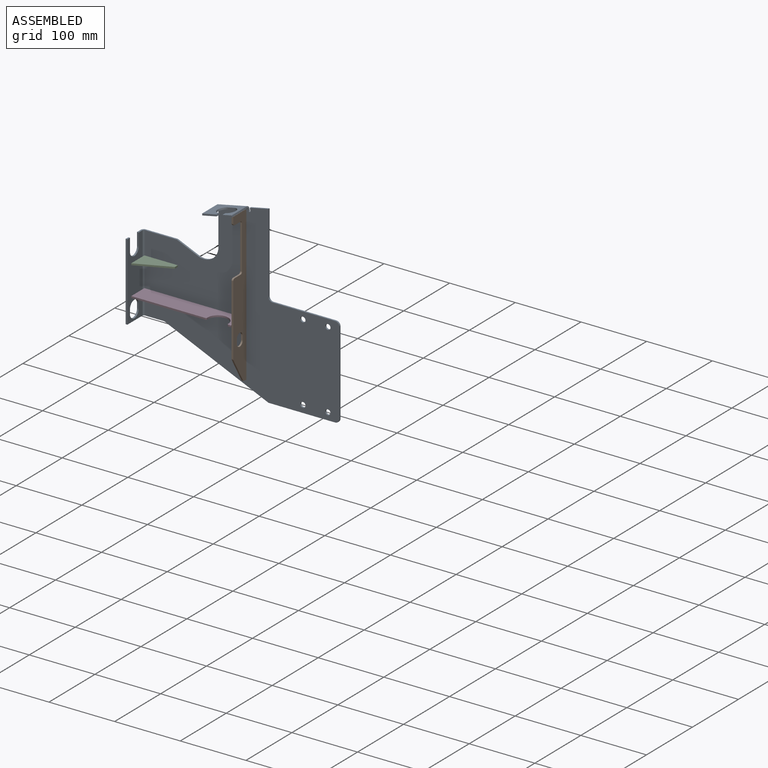
[diagram: assembled view]
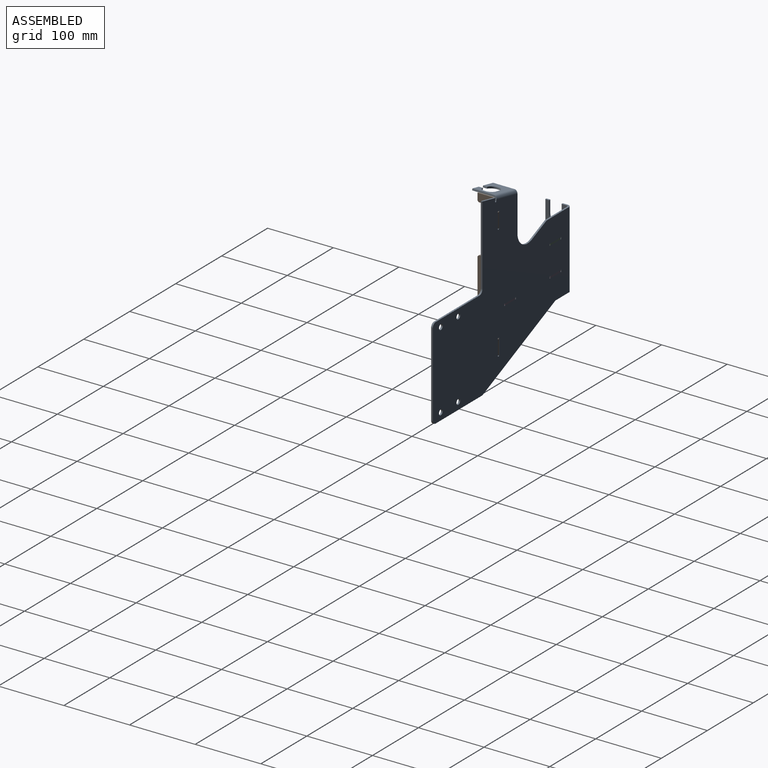
[diagram: assembled view, second angle]
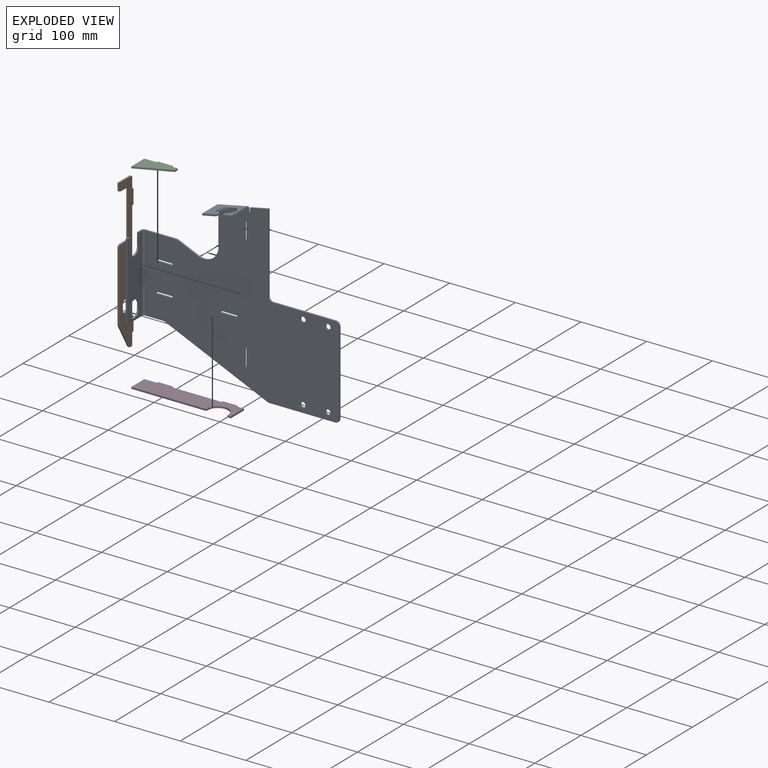
[diagram: exploded view]
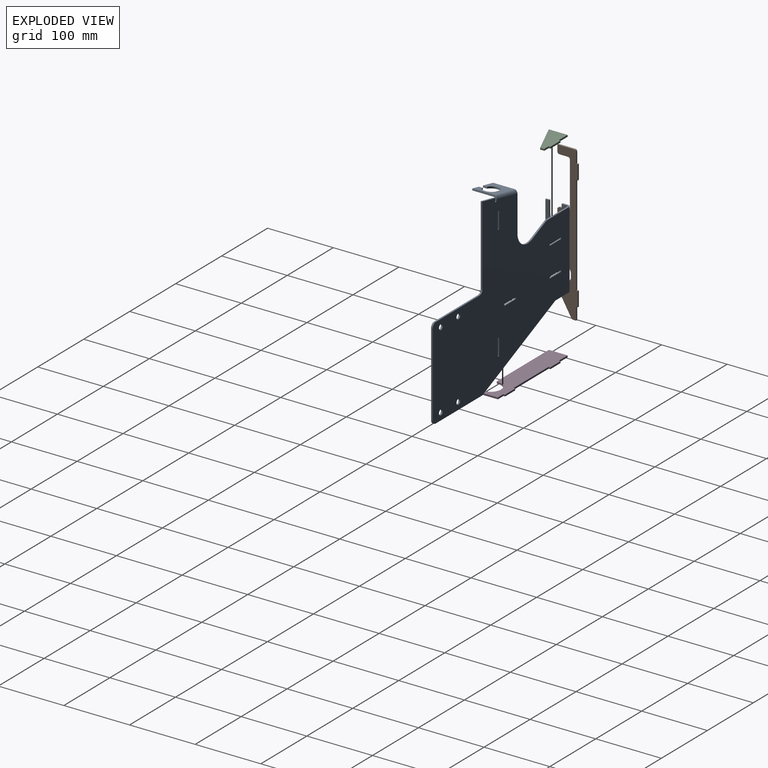
[diagram: exploded view, second angle]
ASSEMBLY  parts=4 mates=3
PART A: 75 faces, bbox 301x37.5x266.7 mm
  f0: plane 95.25x2.54mm, normal (0,0,1), area 241.9mm2, adj f1,f37,f38,f39
  f1: cylinder r=6.35mm len=6.35mm, axis (0,-1,0), area 25.3mm2, adj f0,f2,f38,f39
  f2: plane 127x2.54mm, normal (1,0,0), area 322.6mm2, adj f1,f3,f38,f39
  f3: cylinder r=6.35mm len=6.35mm, axis (0,-1,0), area 25.3mm2, adj f2,f4,f38,f39
  f4: plane 101.6x2.54mm, normal (0,0,-1), area 258.1mm2, adj f3,f5,f38,f39
  f5: plane 158.75x69.85mm, normal (-0.4,0,-0.92), area 440.5mm2, adj f4,f6,f38,f39
  f6: plane 29.46x2.54mm, normal (0,0,-1), area 74.8mm2, adj f5,f38,f39,f71
  f7: plane 48.51x2.54mm, normal (0,0,1), area 123.2mm2, adj f8,f38,f39,f72
  f8: plane 32.45x14.05mm, normal (0.4,0,0.92), area 89.8mm2, adj f7,f9,f38,f39
  f9: cylinder r=22.23mm len=31.05mm, axis (0,-1,0), area 111.7mm2, adj f8,f10,f38,f39
  f10: plane 54.82x2.54mm, normal (-1,0,0), area 139.2mm2, adj f9,f38,f39,f55
  f11: plane 28.44x5.93mm, normal (-0.2,0,0.98), area 73.8mm2, adj f12,f38,f39,f41
  f12: plane 120.65x2.54mm, normal (1,0,0), area 306.5mm2, adj f11,f37,f38,f39
  f13: plane 25.4x2.54mm, normal (-1,0,0), area 64.5mm2, adj f14,f32,f38,f39
  f14: plane 2.54x2.54mm, normal (0,0,-1), area 6.5mm2, adj f13,f15,f38,f39
  f15: plane 25.4x2.54mm, normal (1,0,0), area 64.5mm2, adj f14,f32,f38,f39
  f16: plane 25.4x2.54mm, normal (1,0,0), area 64.5mm2, adj f17,f31,f38,f39
  f17: plane 2.54x2.54mm, normal (0,0,1), area 6.5mm2, adj f16,f18,f38,f39
  f18: plane 25.4x2.54mm, normal (-1,0,0), area 64.5mm2, adj f17,f31,f38,f39
  f19: plane 2.54x2.54mm, normal (-1,0,0), area 6.5mm2, adj f20,f30,f38,f39
  f20: plane 25.4x2.54mm, normal (0,0,-1), area 64.5mm2, adj f19,f21,f38,f39
  f21: plane 2.54x2.54mm, normal (1,0,0), area 6.5mm2, adj f20,f30,f38,f39
  f22: plane 25.4x2.54mm, normal (0,0,1), area 64.5mm2, adj f23,f29,f38,f39
  f23: plane 2.54x2.54mm, normal (-1,0,0), area 6.5mm2, adj f22,f24,f38,f39
  f24: plane 25.4x2.54mm, normal (0,0,-1), area 64.5mm2, adj f23,f29,f38,f39
  f25: plane 25.4x2.54mm, normal (0,0,1), area 64.5mm2, adj f26,f28,f38,f39
  f26: plane 2.54x2.54mm, normal (-1,0,0), area 6.5mm2, adj f25,f27,f38,f39
  f27: plane 25.4x2.54mm, normal (0,0,-1), area 64.5mm2, adj f26,f28,f38,f39
  f28: plane 2.54x2.54mm, normal (1,0,0), area 6.5mm2, adj f25,f27,f38,f39
  f29: plane 2.54x2.54mm, normal (1,0,0), area 6.5mm2, adj f22,f24,f38,f39
  f30: plane 25.4x2.54mm, normal (0,0,1), area 64.5mm2, adj f19,f21,f38,f39
  f31: plane 2.54x2.54mm, normal (0,0,-1), area 6.5mm2, adj f16,f18,f38,f39
  f32: plane 2.54x2.54mm, normal (0,0,1), area 6.5mm2, adj f13,f15,f38,f39
  f33: cylinder r=3.98mm len=7.95mm, axis (0,-1,0), area 63.4mm2, adj f38,f39
  f34: cylinder r=3.98mm len=7.95mm, axis (0,-1,0), area 63.4mm2, adj f38,f39
  f35: cylinder r=3.98mm len=7.95mm, axis (0,-1,0), area 63.4mm2, adj f38,f39
  f36: cylinder r=3.98mm len=7.95mm, axis (0,-1,0), area 63.4mm2, adj f38,f39
  f37: cylinder r=6.35mm len=6.35mm, axis (0,-1,0), area 25.3mm2, adj f0,f12,f38,f39
  f38: plane 296.16x266.7mm, normal (0,1,0), area 46919mm2, adj f0,f1,f2,f3,f4,f5,f6,f7
  f39: plane 296.16x266.7mm, normal (0,-1,0), area 46919mm2, adj f0,f1,f2,f3,f4,f5,f6,f7
  f40: plane 2.54x2.04mm, normal (0.98,0,0.2), area 5.3mm2, adj f38,f39,f42,f54
  f41: plane 4.27x2.54mm, normal (-0.98,0,-0.2), area 11.1mm2, adj f11,f38,f39,f42
  f42: cylinder r=1.35mm len=2.67mm, axis (0,-1,0), area 10.8mm2, adj f38,f39,f40,f41
  f43: plane 32.64x2.49mm, normal (-0.98,0,-0.2), area 82.9mm2, adj f44,f52,f53,f55
  f44: plane 22.28x7.02mm, normal (0,-1,0), area 56.5mm2, adj f43,f45,f52,f53
  f45: plane 6.35x2.49mm, normal (0.98,0,0.2), area 16.1mm2, adj f44,f46,f52,f53
  f46: cylinder r=9.53mm len=19.05mm, axis (-0.2,0,0.98), area 76mm2, adj f45,f47,f52,f53
  f47: plane 9.84x4.43mm, normal (0,-1,0), area 24.2mm2, adj f46,f48,f52,f53
  f48: cylinder r=9.53mm len=19.05mm, axis (-0.2,0,0.98), area 76mm2, adj f47,f49,f52,f53
  f49: plane 6.35x2.49mm, normal (-0.98,0,-0.2), area 16.1mm2, adj f48,f50,f52,f53
  f50: plane 14.55x5.41mm, normal (0,-1,0), area 36.4mm2, adj f49,f51,f52,f53
  f51: plane 32.64x2.49mm, normal (0.98,0,0.2), area 82.9mm2, adj f50,f52,f53,f54
  f52: plane 45.12x32.64mm, normal (-0.2,0,0.98), area 977.2mm2, adj f43,f44,f45,f46,f47,f48,f49,f50
  f53: plane 45.12x32.64mm, normal (0.2,0,-0.98), area 977.2mm2, adj f43,f44,f45,f46,f47,f48,f49,f50
  f54: plane 4.83x4.72mm, normal (0.98,0,0.2), area 14.2mm2, adj f40,f51,f56,f57
  f55: bspline ~4.83x4.83mm, area 14.3mm2, adj f10,f43,f56,f57
  f56: cylinder r=4.83mm len=46.57mm, axis (0.98,0,0.2), area 351.2mm2, adj f38,f52,f54,f55
  f57: cylinder r=2.29mm len=46.05mm, axis (0.98,0,0.2), area 166.3mm2, adj f39,f53,f54,f55
  f58: cylinder r=9.53mm len=19.05mm, axis (1,0,0), area 76mm2, adj f59,f68,f69,f70
  f59: plane 19.05x2.54mm, normal (0,-1,0), area 48.4mm2, adj f58,f60,f69,f70
  f60: plane 7.87x2.54mm, normal (0,0,1), area 20mm2, adj f59,f69,f70,f72
  f61: plane 32.64x2.54mm, normal (0,0,-1), area 82.9mm2, adj f62,f69,f70,f71
  f62: plane 117.48x2.54mm, normal (0,-1,0), area 298.4mm2, adj f61,f63,f69,f70
  f63: plane 5.72x2.54mm, normal (0,0,1), area 14.5mm2, adj f62,f68,f69,f70
  f64: plane 6.35x2.54mm, normal (0,1,0), area 16.1mm2, adj f65,f67,f69,f70
  f65: cylinder r=9.53mm len=19.05mm, axis (1,0,0), area 76mm2, adj f64,f66,f69,f70
  f66: plane 6.35x2.54mm, normal (0,-1,0), area 16.1mm2, adj f65,f67,f69,f70
  f67: cylinder r=9.53mm len=19.05mm, axis (1,0,0), area 76mm2, adj f64,f66,f69,f70
  f68: plane 19.05x2.54mm, normal (0,1,0), area 48.4mm2, adj f58,f63,f69,f70
  f69: plane 117.48x32.64mm, normal (-1,0,0), area 2922.9mm2, adj f58,f59,f60,f61,f62,f63,f64,f65
  f70: plane 117.48x32.64mm, normal (1,0,0), area 2922.9mm2, adj f58,f59,f60,f61,f62,f63,f64,f65
  f71: plane 4.83x4.83mm, normal (0,0,-1), area 14.2mm2, adj f6,f61,f73,f74
  f72: plane 4.83x4.83mm, normal (0,0,1), area 14.2mm2, adj f7,f60,f73,f74
  f73: cylinder r=4.83mm len=117.48mm, axis (0,0,-1), area 890.5mm2, adj f38,f69,f71,f72
  f74: cylinder r=2.29mm len=117.48mm, axis (0,0,-1), area 421.8mm2, adj f39,f70,f71,f72
PART B: 30 faces, bbox 2.5x31.1x235 mm
  f0: plane 6.35x2.54mm, normal (0,1,0), area 16.1mm2, adj f1,f27,f28,f29
  f1: cylinder r=6.35mm len=12.7mm, axis (-1,0,0), area 50.7mm2, adj f0,f2,f28,f29
  f2: plane 6.35x2.54mm, normal (0,-1,0), area 16.1mm2, adj f1,f27,f28,f29
  f3: plane 22.23x2.54mm, normal (0,1,0), area 56.5mm2, adj f4,f26,f28,f29
  f4: plane 2.54x2.54mm, normal (0,0,1), area 6.5mm2, adj f3,f5,f28,f29
  f5: plane 15.88x2.54mm, normal (0,1,0), area 40.3mm2, adj f4,f6,f28,f29
  f6: cylinder r=3.17mm len=3.18mm, axis (-1,0,0), area 12.7mm2, adj f5,f7,f28,f29
  f7: plane 25.4x2.54mm, normal (0,0,1), area 64.5mm2, adj f6,f8,f28,f29
  f8: plane 9.53x2.54mm, normal (0,-1,0), area 24.2mm2, adj f7,f9,f28,f29
  f9: cylinder r=3.17mm len=3.18mm, axis (-1,0,0), area 12.7mm2, adj f8,f10,f28,f29
  f10: plane 12.7x2.54mm, normal (0,0,-1), area 32.3mm2, adj f9,f11,f28,f29
  f11: cylinder r=3.17mm len=3.18mm, axis (-1,0,0), area 12.7mm2, adj f10,f12,f28,f29
  f12: plane 66.68x2.54mm, normal (0,-1,0), area 169.4mm2, adj f11,f13,f28,f29
  f13: cylinder r=3.17mm len=3.18mm, axis (-1,0,0), area 12.7mm2, adj f12,f14,f28,f29
  f14: plane 12.7x2.54mm, normal (0,0,1), area 32.3mm2, adj f13,f15,f28,f29
  f15: cylinder r=3.17mm len=3.18mm, axis (-1,0,0), area 12.7mm2, adj f14,f16,f28,f29
  f16: plane 107.09x2.54mm, normal (0,-1,0), area 272mm2, adj f15,f17,f28,f29
  f17: cylinder r=3.17mm len=2.54mm, axis (-1,0,0), area 4.3mm2, adj f16,f18,f28,f29
  f18: plane 35.78x20.87mm, normal (0,-0.86,-0.5), area 105.2mm2, adj f17,f19,f28,f29
  f19: cylinder r=3.17mm len=2.74mm, axis (-1,0,0), area 8.4mm2, adj f18,f20,f28,f29
  f20: plane 4.53x2.54mm, normal (0,0,-1), area 11.5mm2, adj f19,f21,f28,f29
  f21: plane 19.05x2.54mm, normal (0,1,0), area 48.4mm2, adj f20,f22,f28,f29
  f22: plane 2.54x2.47mm, normal (0,0,-1), area 6.3mm2, adj f21,f23,f28,f29
  f23: plane 22.23x2.54mm, normal (0,1,0), area 56.5mm2, adj f22,f24,f28,f29
  f24: plane 2.54x2.47mm, normal (0,0,1), area 6.3mm2, adj f23,f25,f28,f29
  f25: plane 152.4x2.54mm, normal (0,1,0), area 387.1mm2, adj f24,f26,f28,f29
  f26: plane 2.54x2.54mm, normal (0,0,-1), area 6.5mm2, adj f3,f25,f28,f29
  f27: cylinder r=6.35mm len=12.7mm, axis (-1,0,0), area 50.7mm2, adj f0,f2,f28,f29
  f28: plane 234.95x31.12mm, normal (1,0,0), area 4800.4mm2, adj f0,f1,f2,f3,f4,f5,f6,f7
  f29: plane 234.95x31.12mm, normal (-1,0,0), area 4800.4mm2, adj f0,f1,f2,f3,f4,f5,f6,f7
PART C: 11 faces, bbox 50.8x2.5x31.1 mm
  f0: plane 28.58x2.54mm, normal (-1,0,0), area 72.6mm2, adj f1,f8,f9,f10
  f1: plane 19.05x2.54mm, normal (0,0,-1), area 48.4mm2, adj f0,f2,f9,f10
  f2: plane 2.54x2.54mm, normal (-1,0,0), area 6.5mm2, adj f1,f3,f9,f10
  f3: plane 22.23x2.54mm, normal (0,0,-1), area 56.5mm2, adj f2,f4,f9,f10
  f4: plane 2.54x2.54mm, normal (1,0,0), area 6.5mm2, adj f3,f5,f9,f10
  f5: plane 9.53x2.54mm, normal (0,0,-1), area 24.2mm2, adj f4,f6,f9,f10
  f6: plane 6.35x2.54mm, normal (1,0,0), area 16.1mm2, adj f5,f7,f9,f10
  f7: plane 50.5x22.23mm, normal (0.4,0,0.92), area 140.1mm2, adj f6,f8,f9,f10
  f8: plane 2.54x0.3mm, normal (0,0,1), area 0.8mm2, adj f0,f7,f9,f10
  f9: plane 50.8x31.12mm, normal (0,-1,0), area 946.9mm2, adj f0,f1,f2,f3,f4,f5,f6,f7
  f10: plane 50.8x31.12mm, normal (0,1,0), area 946.9mm2, adj f0,f1,f2,f3,f4,f5,f6,f7
PART D: 20 faces, bbox 151.8x2.5x31.1 mm
  f0: plane 2.54x1.65mm, normal (-1,0,0), area 4.2mm2, adj f1,f17,f18,f19
  f1: cylinder r=15.88mm len=31.73mm, axis (0,1,0), area 126.7mm2, adj f0,f2,f18,f19
  f2: plane 2.54x0.16mm, normal (1,0,0), area 0.4mm2, adj f1,f3,f18,f19
  f3: cylinder r=1.52mm len=2.54mm, axis (0,1,0), area 6.1mm2, adj f2,f4,f18,f19
  f4: plane 112.81x2.54mm, normal (0,0,1), area 286.5mm2, adj f3,f5,f18,f19
  f5: plane 28.58x2.54mm, normal (-1,0,0), area 72.6mm2, adj f4,f6,f18,f19
  f6: plane 19.05x2.54mm, normal (0,0,-1), area 48.4mm2, adj f5,f7,f18,f19
  f7: plane 2.54x2.54mm, normal (-1,0,0), area 6.5mm2, adj f6,f8,f18,f19
  f8: plane 22.23x2.54mm, normal (0,0,-1), area 56.5mm2, adj f7,f9,f18,f19
  f9: plane 2.54x2.54mm, normal (1,0,0), area 6.5mm2, adj f8,f10,f18,f19
  f10: plane 76.2x2.54mm, normal (0,0,-1), area 193.5mm2, adj f9,f11,f18,f19
  f11: plane 2.54x2.54mm, normal (-1,0,0), area 6.5mm2, adj f10,f12,f18,f19
  f12: plane 22.23x2.54mm, normal (0,0,-1), area 56.5mm2, adj f11,f13,f18,f19
  f13: plane 2.54x2.54mm, normal (1,0,0), area 6.5mm2, adj f12,f14,f18,f19
  f14: plane 12.07x2.54mm, normal (0,0,-1), area 30.6mm2, adj f13,f15,f18,f19
  f15: plane 28.58x2.54mm, normal (1,0,0), area 72.6mm2, adj f14,f16,f18,f19
  f16: plane 4.19x2.54mm, normal (0,0,1), area 10.6mm2, adj f15,f17,f18,f19
  f17: cylinder r=1.52mm len=2.54mm, axis (0,1,0), area 6.1mm2, adj f0,f16,f18,f19
  f18: plane 151.77x31.12mm, normal (0,-1,0), area 3975.7mm2, adj f0,f1,f2,f3,f4,f5,f6,f7
  f19: plane 151.77x31.12mm, normal (0,1,0), area 3975.7mm2, adj f0,f1,f2,f3,f4,f5,f6,f7
PLACE A t=(-125.6,56.9,72.35)mm
PLACE B t=(-161.85,28.26,95.24)mm
PLACE C rot(axis=(1,0,0),90deg) t=(-125.7,43.4,224.75)mm
PLACE D rot(axis=(1,0,0),90deg) t=(-314.56,56.9,179.67)mm
MATE fastened B.f28 <-> A.f18  axis (1,0,0) through (-159.31,59.44,300.03)mm
MATE fastened D.f19 <-> A.f20  axis (0,0,1) through (-284.4,59.44,179.67)mm
MATE fastened C.f10 <-> A.f27  axis (0,0,1) through (-284.4,59.44,224.75)mm
